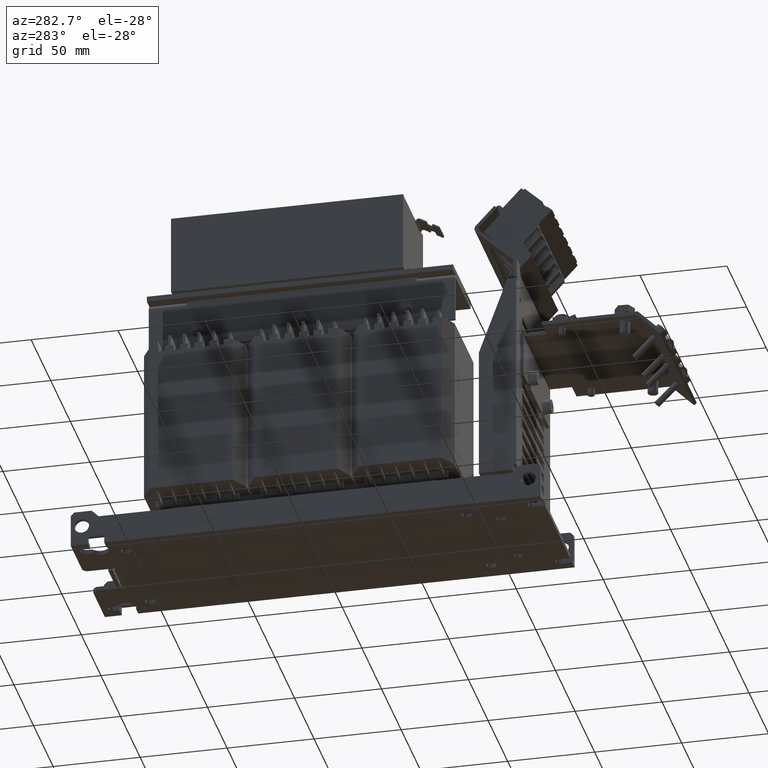
[diagram: clean part render]
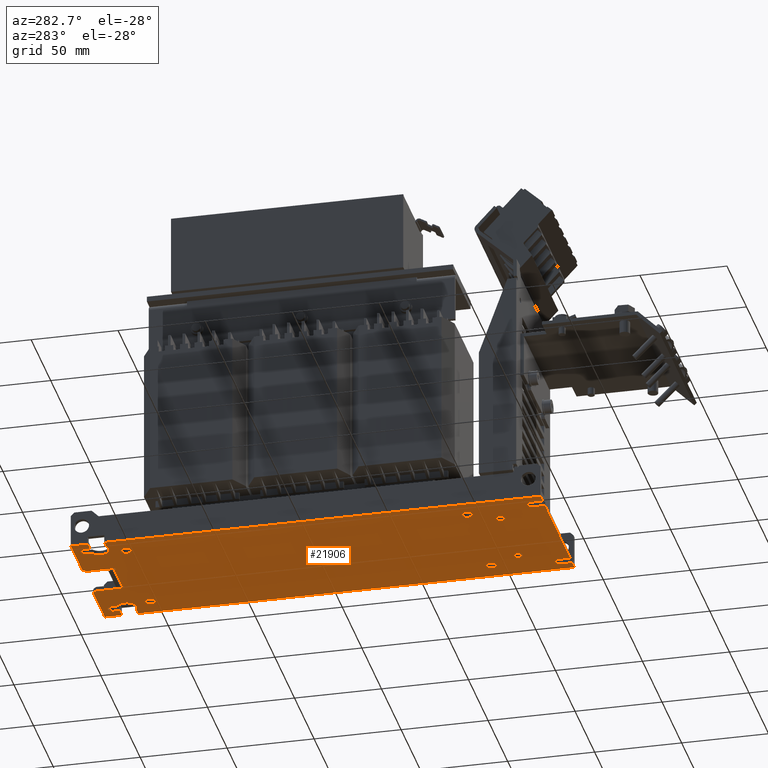
[diagram: same view with one face highlighted and labeled with its STEP entity id]
A machine part, auxiliary view. The second image highlights one B-rep face of the part: STEP entity #21906.
In plain terms, the highlighted planar face has unit normal (0, 0, -1).
Its self-contained STEP definition (entity closure, byte-faithful):
#6055=DIRECTION('',(1.E0,0.E0,0.E0));
#6056=VECTOR('',#6055,5.704976797613E0);
#6057=CARTESIAN_POINT('',(3.779502320124E1,1.157631397208E2,-2.5E0));
#6058=LINE('',#6057,#6056);
#6064=CARTESIAN_POINT('',(3.5E1,1.205E2,-2.5E0));
#6065=DIRECTION('',(0.E0,0.E0,1.E0));
#6066=DIRECTION('',(-5.E-1,8.660254037844E-1,0.E0));
#6067=AXIS2_PLACEMENT_3D('',#6064,#6065,#6066);
#6077=DIRECTION('',(0.E0,1.E0,0.E0));
#6078=VECTOR('',#6077,3.236860279186E0);
#6079=CARTESIAN_POINT('',(3.225E1,1.252631397208E2,-2.5E0));
#6080=LINE('',#6079,#6078);
#6081=DIRECTION('',(0.E0,-1.E0,0.E0));
#6082=VECTOR('',#6081,3.236860279186E0);
#6083=CARTESIAN_POINT('',(3.775E1,1.285E2,-2.5E0));
#6084=LINE('',#6083,#6082);
#6085=DIRECTION('',(0.E0,-1.E0,0.E0));
#6086=VECTOR('',#6085,9.736860279186E0);
#6087=CARTESIAN_POINT('',(4.349999999885E1,1.35E2,-2.5E0));
#6088=LINE('',#6087,#6086);
#6089=DIRECTION('',(-7.071067811866E-1,-7.071067811865E-1,0.E0));
#6090=VECTOR('',#6089,2.828427124746E0);
#6091=CARTESIAN_POINT('',(1.4E1,1.35E2,-2.5E0));
#6092=LINE('',#6091,#6090);
#6093=DIRECTION('',(0.E0,-1.E0,0.E0));
#6094=VECTOR('',#6093,1.65E1);
#6095=CARTESIAN_POINT('',(1.2E1,1.33E2,-2.5E0));
#6096=LINE('',#6095,#6094);
#6097=DIRECTION('',(-1.E0,0.E0,0.E0));
#6098=VECTOR('',#6097,2.E0);
#6099=CARTESIAN_POINT('',(1.2E1,1.165E2,-2.5E0));
#6100=LINE('',#6099,#6098);
#6101=DIRECTION('',(0.E0,1.E0,0.E0));
#6102=VECTOR('',#6101,1.E0);
#6103=CARTESIAN_POINT('',(1.E1,1.165E2,-2.5E0));
#6104=LINE('',#6103,#6102);
#6105=DIRECTION('',(-1.E0,0.E0,0.E0));
#6106=VECTOR('',#6105,2.E1);
#6107=CARTESIAN_POINT('',(1.E1,1.175E2,-2.5E0));
#6108=LINE('',#6107,#6106);
#6109=DIRECTION('',(0.E0,-1.E0,0.E0));
#6110=VECTOR('',#6109,1.E0);
#6111=CARTESIAN_POINT('',(-1.E1,1.175E2,-2.5E0));
#6112=LINE('',#6111,#6110);
#6113=DIRECTION('',(-1.E0,0.E0,0.E0));
#6114=VECTOR('',#6113,2.E0);
#6115=CARTESIAN_POINT('',(-1.E1,1.165E2,-2.5E0));
#6116=LINE('',#6115,#6114);
#6117=DIRECTION('',(0.E0,1.E0,0.E0));
#6118=VECTOR('',#6117,1.65E1);
#6119=CARTESIAN_POINT('',(-1.2E1,1.165E2,-2.5E0));
#6120=LINE('',#6119,#6118);
#6121=DIRECTION('',(-7.071067811865E-1,7.071067811865E-1,0.E0));
#6122=VECTOR('',#6121,2.828427124746E0);
#6123=CARTESIAN_POINT('',(-1.2E1,1.33E2,-2.5E0));
#6124=LINE('',#6123,#6122);
#6125=DIRECTION('',(0.E0,1.E0,0.E0));
#6126=VECTOR('',#6125,3.236860279186E0);
#6127=CARTESIAN_POINT('',(-3.775E1,1.252631397208E2,-2.5E0));
#6128=LINE('',#6127,#6126);
#6129=DIRECTION('',(0.E0,-1.E0,0.E0));
#6130=VECTOR('',#6129,3.236860279186E0);
#6131=CARTESIAN_POINT('',(-3.225E1,1.285E2,-2.5E0));
#6132=LINE('',#6131,#6130);
#6133=DIRECTION('',(7.071067811866E-1,7.071067811865E-1,0.E0));
#6134=VECTOR('',#6133,7.071067811866E-1);
#6135=CARTESIAN_POINT('',(-3.825E1,-1.35E2,-2.500000000001E0));
#6136=LINE('',#6135,#6134);
#6137=DIRECTION('',(0.E0,1.E0,0.E0));
#6138=VECTOR('',#6137,6.E0);
#6139=CARTESIAN_POINT('',(-3.775E1,-1.345E2,-2.500000000001E0));
#6140=LINE('',#6139,#6138);
#6141=DIRECTION('',(0.E0,-1.E0,0.E0));
#6142=VECTOR('',#6141,6.E0);
#6143=CARTESIAN_POINT('',(-3.225E1,-1.285E2,-2.500000000001E0));
#6144=LINE('',#6143,#6142);
#6145=DIRECTION('',(7.071067811865E-1,-7.071067811866E-1,0.E0));
#6146=VECTOR('',#6145,7.071067811865E-1);
#6147=CARTESIAN_POINT('',(-3.225E1,-1.345E2,-2.500000000001E0));
#6148=LINE('',#6147,#6146);
#6149=DIRECTION('',(7.071067811865E-1,7.071067811866E-1,0.E0));
#6150=VECTOR('',#6149,7.071067811865E-1);
#6151=CARTESIAN_POINT('',(3.175E1,-1.35E2,-2.500000000001E0));
#6152=LINE('',#6151,#6150);
#6153=DIRECTION('',(0.E0,1.E0,0.E0));
#6154=VECTOR('',#6153,6.E0);
#6155=CARTESIAN_POINT('',(3.225E1,-1.345E2,-2.500000000001E0));
#6156=LINE('',#6155,#6154);
#6157=DIRECTION('',(0.E0,-1.E0,0.E0));
#6158=VECTOR('',#6157,6.E0);
#6159=CARTESIAN_POINT('',(3.775E1,-1.285E2,-2.500000000001E0));
#6160=LINE('',#6159,#6158);
#6161=DIRECTION('',(7.071067811865E-1,-7.071067811866E-1,0.E0));
#6162=VECTOR('',#6161,7.071067811865E-1);
#6163=CARTESIAN_POINT('',(3.775E1,-1.345E2,-2.500000000001E0));
#6164=LINE('',#6163,#6162);
#6165=DIRECTION('',(0.E0,-1.E0,0.E0));
#6166=VECTOR('',#6165,2.507631397208E2);
#6167=CARTESIAN_POINT('',(4.349999999885E1,1.157631397208E2,-2.5E0));
#6168=LINE('',#6167,#6166);
#6169=CARTESIAN_POINT('',(2.25E1,-1.075E2,-2.500000000001E0));
#6170=DIRECTION('',(0.E0,0.E0,-1.E0));
#6171=DIRECTION('',(1.136868377216E-14,1.E0,0.E0));
#6172=AXIS2_PLACEMENT_3D('',#6169,#6170,#6171);
#6174=CARTESIAN_POINT('',(2.25E1,-1.075E2,-2.500000000001E0));
#6175=DIRECTION('',(0.E0,0.E0,-1.E0));
#6176=DIRECTION('',(1.136868377216E-14,-1.E0,0.E0));
#6177=AXIS2_PLACEMENT_3D('',#6174,#6175,#6176);
#6179=CARTESIAN_POINT('',(3.1E1,-9.E1,-2.5E0));
#6180=DIRECTION('',(0.E0,0.E0,-1.E0));
#6181=DIRECTION('',(-1.065814103640E-14,-1.E0,0.E0));
#6182=AXIS2_PLACEMENT_3D('',#6179,#6180,#6181);
#6184=CARTESIAN_POINT('',(3.1E1,-9.E1,-2.5E0));
#6185=DIRECTION('',(0.E0,0.E0,-1.E0));
#6186=DIRECTION('',(-1.065814103640E-14,1.E0,0.E0));
#6187=AXIS2_PLACEMENT_3D('',#6184,#6185,#6186);
#6189=CARTESIAN_POINT('',(-2.25E1,-1.075E2,-2.500000000001E0));
#6190=DIRECTION('',(0.E0,0.E0,-1.E0));
#6191=DIRECTION('',(0.E0,1.E0,0.E0));
#6192=AXIS2_PLACEMENT_3D('',#6189,#6190,#6191);
#6194=CARTESIAN_POINT('',(-2.25E1,-1.075E2,-2.500000000001E0));
#6195=DIRECTION('',(0.E0,0.E0,-1.E0));
#6196=DIRECTION('',(0.E0,-1.E0,0.E0));
#6197=AXIS2_PLACEMENT_3D('',#6194,#6195,#6196);
#6199=CARTESIAN_POINT('',(-3.1E1,-9.E1,-2.5E0));
#6200=DIRECTION('',(0.E0,0.E0,-1.E0));
#6201=DIRECTION('',(-1.184237892934E-14,1.E0,0.E0));
#6202=AXIS2_PLACEMENT_3D('',#6199,#6200,#6201);
#6204=CARTESIAN_POINT('',(-3.1E1,-9.E1,-2.5E0));
#6205=DIRECTION('',(0.E0,0.E0,-1.E0));
#6206=DIRECTION('',(-1.184237892934E-14,-1.E0,0.E0));
#6207=AXIS2_PLACEMENT_3D('',#6204,#6205,#6206);
#6209=CARTESIAN_POINT('',(3.1E1,1.06E2,-2.5E0));
#6210=DIRECTION('',(0.E0,0.E0,-1.E0));
#6211=DIRECTION('',(0.E0,1.E0,0.E0));
#6212=AXIS2_PLACEMENT_3D('',#6209,#6210,#6211);
#6214=CARTESIAN_POINT('',(3.1E1,1.06E2,-2.5E0));
#6215=DIRECTION('',(0.E0,0.E0,-1.E0));
#6216=DIRECTION('',(0.E0,-1.E0,0.E0));
#6217=AXIS2_PLACEMENT_3D('',#6214,#6215,#6216);
#6219=CARTESIAN_POINT('',(-3.1E1,1.06E2,-2.5E0));
#6220=DIRECTION('',(0.E0,0.E0,-1.E0));
#6221=DIRECTION('',(0.E0,-1.E0,0.E0));
#6222=AXIS2_PLACEMENT_3D('',#6219,#6220,#6221);
#6224=CARTESIAN_POINT('',(-3.1E1,1.06E2,-2.5E0));
#6225=DIRECTION('',(0.E0,0.E0,-1.E0));
#6226=DIRECTION('',(0.E0,1.E0,0.E0));
#6227=AXIS2_PLACEMENT_3D('',#6224,#6225,#6226);
#6234=CARTESIAN_POINT('',(3.5E1,1.285E2,-2.5E0));
#6235=DIRECTION('',(0.E0,0.E0,1.E0));
#6236=DIRECTION('',(1.E0,0.E0,0.E0));
#6237=AXIS2_PLACEMENT_3D('',#6234,#6235,#6236);
#6251=DIRECTION('',(-1.E0,0.E0,0.E0));
#6252=VECTOR('',#6251,5.749999998854E0);
#6253=CARTESIAN_POINT('',(4.349999999885E1,1.252631397208E2,-2.5E0));
#6254=LINE('',#6253,#6252);
#6423=DIRECTION('',(-1.E0,0.E0,0.E0));
#6424=VECTOR('',#6423,6.35E1);
#6425=CARTESIAN_POINT('',(3.175E1,-1.35E2,-2.500000000001E0));
#6426=LINE('',#6425,#6424);
#6443=DIRECTION('',(-1.E0,0.E0,0.E0));
#6444=VECTOR('',#6443,5.249999998854E0);
#6445=CARTESIAN_POINT('',(4.349999999885E1,-1.35E2,-2.500000000001E0));
#6446=LINE('',#6445,#6444);
#6475=DIRECTION('',(-1.E0,0.E0,0.E0));
#6476=VECTOR('',#6475,5.25E0);
#6477=CARTESIAN_POINT('',(-3.825E1,-1.35E2,-2.500000000001E0));
#6478=LINE('',#6477,#6476);
#6492=CARTESIAN_POINT('',(3.5E1,-1.285E2,-2.500000000001E0));
#6493=DIRECTION('',(0.E0,0.E0,1.E0));
#6494=DIRECTION('',(1.E0,0.E0,0.E0));
#6495=AXIS2_PLACEMENT_3D('',#6492,#6493,#6494);
#6522=CARTESIAN_POINT('',(-3.5E1,-1.285E2,-2.500000000001E0));
#6523=DIRECTION('',(0.E0,0.E0,1.E0));
#6524=DIRECTION('',(1.E0,1.240220047872E-13,0.E0));
#6525=AXIS2_PLACEMENT_3D('',#6522,#6523,#6524);
#6627=DIRECTION('',(0.E0,-1.E0,0.E0));
#6628=VECTOR('',#6627,2.507631397208E2);
#6629=CARTESIAN_POINT('',(-4.35E1,1.157631397208E2,-2.5E0));
#6630=LINE('',#6629,#6628);
#6643=DIRECTION('',(0.E0,-1.E0,0.E0));
#6644=VECTOR('',#6643,9.736860279186E0);
#6645=CARTESIAN_POINT('',(-4.35E1,1.35E2,-2.5E0));
#6646=LINE('',#6645,#6644);
#6683=DIRECTION('',(1.E0,0.E0,0.E0));
#6684=VECTOR('',#6683,5.704976798759E0);
#6685=CARTESIAN_POINT('',(-4.35E1,1.157631397208E2,-2.5E0));
#6686=LINE('',#6685,#6684);
#6711=DIRECTION('',(-1.E0,0.E0,0.E0));
#6712=VECTOR('',#6711,5.75E0);
#6713=CARTESIAN_POINT('',(-3.775E1,1.252631397208E2,-2.5E0));
#6714=LINE('',#6713,#6712);
#6724=CARTESIAN_POINT('',(-3.5E1,1.285E2,-2.5E0));
#6725=DIRECTION('',(0.E0,0.E0,1.E0));
#6726=DIRECTION('',(1.E0,0.E0,0.E0));
#6727=AXIS2_PLACEMENT_3D('',#6724,#6725,#6726);
#6742=CARTESIAN_POINT('',(-3.5E1,1.205E2,-2.5E0));
#6743=DIRECTION('',(0.E0,0.E0,1.E0));
#6744=DIRECTION('',(-5.081860365892E-1,-8.612473234883E-1,0.E0));
#6745=AXIS2_PLACEMENT_3D('',#6742,#6743,#6744);
#6767=DIRECTION('',(-1.E0,0.E0,0.E0));
#6768=VECTOR('',#6767,2.949999999885E1);
#6769=CARTESIAN_POINT('',(4.349999999885E1,1.35E2,-2.5E0));
#6770=LINE('',#6769,#6768);
#6783=DIRECTION('',(-1.E0,0.E0,0.E0));
#6784=VECTOR('',#6783,2.95E1);
#6785=CARTESIAN_POINT('',(-1.4E1,1.35E2,-2.5E0));
#6786=LINE('',#6785,#6784);
#11661=CARTESIAN_POINT('',(-1.4E1,1.35E2,-2.5E0));
#11663=VERTEX_POINT('',#11661);
#11665=CARTESIAN_POINT('',(1.4E1,1.35E2,-2.5E0));
#11667=VERTEX_POINT('',#11665);
#11669=CARTESIAN_POINT('',(3.825E1,-1.35E2,-2.500000000001E0));
#11671=VERTEX_POINT('',#11669);
#11673=CARTESIAN_POINT('',(3.175E1,-1.35E2,-2.500000000001E0));
#11675=VERTEX_POINT('',#11673);
#11677=CARTESIAN_POINT('',(-3.825E1,-1.35E2,-2.500000000001E0));
#11679=VERTEX_POINT('',#11677);
#11681=CARTESIAN_POINT('',(-3.175E1,-1.35E2,-2.500000000001E0));
#11683=VERTEX_POINT('',#11681);
#11689=CARTESIAN_POINT('',(4.349999999885E1,1.157631397208E2,-2.5E0));
#11690=VERTEX_POINT('',#11689);
#11691=CARTESIAN_POINT('',(4.349999999885E1,1.252631397208E2,-2.5E0));
#11692=VERTEX_POINT('',#11691);
#11693=CARTESIAN_POINT('',(3.225E1,1.252631397208E2,-2.5E0));
#11694=CARTESIAN_POINT('',(3.225E1,1.285E2,-2.5E0));
#11695=VERTEX_POINT('',#11693);
#11696=VERTEX_POINT('',#11694);
#11697=CARTESIAN_POINT('',(3.775E1,1.285E2,-2.5E0));
#11698=CARTESIAN_POINT('',(3.775E1,1.252631397208E2,-2.5E0));
#11699=VERTEX_POINT('',#11697);
#11700=VERTEX_POINT('',#11698);
#11701=CARTESIAN_POINT('',(-3.775E1,1.252631397208E2,-2.5E0));
#11702=CARTESIAN_POINT('',(-3.775E1,1.285E2,-2.5E0));
#11703=VERTEX_POINT('',#11701);
#11704=VERTEX_POINT('',#11702);
#11705=CARTESIAN_POINT('',(-3.225E1,1.285E2,-2.5E0));
#11706=CARTESIAN_POINT('',(-3.225E1,1.252631397208E2,-2.5E0));
#11707=VERTEX_POINT('',#11705);
#11708=VERTEX_POINT('',#11706);
#11709=CARTESIAN_POINT('',(3.775E1,-1.285E2,-2.500000000001E0));
#11710=CARTESIAN_POINT('',(3.775E1,-1.345E2,-2.500000000001E0));
#11711=VERTEX_POINT('',#11709);
#11712=VERTEX_POINT('',#11710);
#11713=CARTESIAN_POINT('',(3.225E1,-1.345E2,-2.500000000001E0));
#11714=VERTEX_POINT('',#11713);
#11715=CARTESIAN_POINT('',(3.225E1,-1.285E2,-2.500000000001E0));
#11716=VERTEX_POINT('',#11715);
#11717=CARTESIAN_POINT('',(-3.775E1,-1.345E2,-2.500000000001E0));
#11718=VERTEX_POINT('',#11717);
#11719=CARTESIAN_POINT('',(-3.775E1,-1.285E2,-2.500000000001E0));
#11720=VERTEX_POINT('',#11719);
#11721=CARTESIAN_POINT('',(-3.225E1,-1.285E2,-2.500000000001E0));
#11722=CARTESIAN_POINT('',(-3.225E1,-1.345E2,-2.500000000001E0));
#11723=VERTEX_POINT('',#11721);
#11724=VERTEX_POINT('',#11722);
#11725=CARTESIAN_POINT('',(2.25E1,-1.05E2,-2.500000000001E0));
#11726=CARTESIAN_POINT('',(2.25E1,-1.1E2,-2.500000000001E0));
#11727=VERTEX_POINT('',#11725);
#11728=VERTEX_POINT('',#11726);
#11729=CARTESIAN_POINT('',(3.1E1,-9.3E1,-2.5E0));
#11730=CARTESIAN_POINT('',(3.1E1,-8.7E1,-2.500000000001E0));
#11731=VERTEX_POINT('',#11729);
#11732=VERTEX_POINT('',#11730);
#11733=CARTESIAN_POINT('',(-2.25E1,-1.05E2,-2.500000000001E0));
#11734=CARTESIAN_POINT('',(-2.25E1,-1.1E2,-2.500000000001E0));
#11735=VERTEX_POINT('',#11733);
#11736=VERTEX_POINT('',#11734);
#11737=CARTESIAN_POINT('',(-3.1E1,-8.7E1,-2.500000000001E0));
#11738=CARTESIAN_POINT('',(-3.1E1,-9.3E1,-2.5E0));
#11739=VERTEX_POINT('',#11737);
#11740=VERTEX_POINT('',#11738);
#11741=CARTESIAN_POINT('',(3.1E1,1.09E2,-2.5E0));
#11742=CARTESIAN_POINT('',(3.1E1,1.03E2,-2.5E0));
#11743=VERTEX_POINT('',#11741);
#11744=VERTEX_POINT('',#11742);
#11745=CARTESIAN_POINT('',(-3.1E1,1.03E2,-2.5E0));
#11746=CARTESIAN_POINT('',(-3.1E1,1.09E2,-2.5E0));
#11747=VERTEX_POINT('',#11745);
#11748=VERTEX_POINT('',#11746);
#11749=CARTESIAN_POINT('',(1.2E1,1.33E2,-2.5E0));
#11750=CARTESIAN_POINT('',(1.2E1,1.165E2,-2.5E0));
#11751=VERTEX_POINT('',#11749);
#11752=VERTEX_POINT('',#11750);
#11753=CARTESIAN_POINT('',(1.E1,1.165E2,-2.5E0));
#11754=VERTEX_POINT('',#11753);
#11755=CARTESIAN_POINT('',(1.E1,1.175E2,-2.5E0));
#11756=VERTEX_POINT('',#11755);
#11757=CARTESIAN_POINT('',(-1.E1,1.175E2,-2.5E0));
#11758=VERTEX_POINT('',#11757);
#11759=CARTESIAN_POINT('',(-1.E1,1.165E2,-2.5E0));
#11760=VERTEX_POINT('',#11759);
#11761=CARTESIAN_POINT('',(-1.2E1,1.165E2,-2.5E0));
#11762=VERTEX_POINT('',#11761);
#11763=CARTESIAN_POINT('',(-1.2E1,1.33E2,-2.5E0));
#11764=VERTEX_POINT('',#11763);
#11769=CARTESIAN_POINT('',(-4.35E1,1.252631397208E2,-2.5E0));
#11770=VERTEX_POINT('',#11769);
#11771=CARTESIAN_POINT('',(-4.35E1,1.157631397208E2,-2.5E0));
#11772=VERTEX_POINT('',#11771);
#11837=CARTESIAN_POINT('',(4.349999999885E1,1.35E2,-2.5E0));
#11838=VERTEX_POINT('',#11837);
#11839=CARTESIAN_POINT('',(-4.35E1,1.35E2,-2.5E0));
#11840=VERTEX_POINT('',#11839);
#11845=CARTESIAN_POINT('',(4.349999999885E1,-1.35E2,-2.500000000001E0));
#11846=VERTEX_POINT('',#11845);
#11847=CARTESIAN_POINT('',(-4.35E1,-1.35E2,-2.500000000001E0));
#11848=VERTEX_POINT('',#11847);
#11853=CARTESIAN_POINT('',(3.779502320124E1,1.157631397208E2,-2.5E0));
#11855=VERTEX_POINT('',#11853);
#11857=CARTESIAN_POINT('',(-3.779502320124E1,1.157631397208E2,-2.5E0));
#11859=VERTEX_POINT('',#11857);
#21786=CARTESIAN_POINT('',(4.349999999885E1,1.35E2,-2.5E0));
#21787=DIRECTION('',(0.E0,0.E0,-1.E0));
#21788=DIRECTION('',(-1.E0,0.E0,0.E0));
#21789=AXIS2_PLACEMENT_3D('',#21786,#21787,#21788);
#21790=PLANE('',#21789);
#21791=ORIENTED_EDGE('',*,*,#21747,.F.);
#21792=ORIENTED_EDGE('',*,*,#21766,.F.);
#21793=ORIENTED_EDGE('',*,*,#21777,.T.);
#21795=ORIENTED_EDGE('',*,*,#21794,.F.);
#21797=ORIENTED_EDGE('',*,*,#21796,.T.);
#21799=ORIENTED_EDGE('',*,*,#21798,.F.);
#21801=ORIENTED_EDGE('',*,*,#21800,.F.);
#21803=ORIENTED_EDGE('',*,*,#21802,.T.);
#21805=ORIENTED_EDGE('',*,*,#21804,.T.);
#21807=ORIENTED_EDGE('',*,*,#21806,.T.);
#21809=ORIENTED_EDGE('',*,*,#21808,.T.);
#21811=ORIENTED_EDGE('',*,*,#21810,.T.);
#21813=ORIENTED_EDGE('',*,*,#21812,.T.);
#21815=ORIENTED_EDGE('',*,*,#21814,.T.);
#21817=ORIENTED_EDGE('',*,*,#21816,.T.);
#21819=ORIENTED_EDGE('',*,*,#21818,.T.);
#21821=ORIENTED_EDGE('',*,*,#21820,.T.);
#21823=ORIENTED_EDGE('',*,*,#21822,.T.);
#21825=ORIENTED_EDGE('',*,*,#21824,.T.);
#21827=ORIENTED_EDGE('',*,*,#21826,.F.);
#21829=ORIENTED_EDGE('',*,*,#21828,.T.);
#21831=ORIENTED_EDGE('',*,*,#21830,.F.);
#21833=ORIENTED_EDGE('',*,*,#21832,.T.);
#21835=ORIENTED_EDGE('',*,*,#21834,.F.);
#21837=ORIENTED_EDGE('',*,*,#21836,.F.);
#21839=ORIENTED_EDGE('',*,*,#21838,.T.);
#21841=ORIENTED_EDGE('',*,*,#21840,.F.);
#21843=ORIENTED_EDGE('',*,*,#21842,.T.);
#21845=ORIENTED_EDGE('',*,*,#21844,.T.);
#21847=ORIENTED_EDGE('',*,*,#21846,.F.);
#21849=ORIENTED_EDGE('',*,*,#21848,.T.);
#21851=ORIENTED_EDGE('',*,*,#21850,.T.);
#21853=ORIENTED_EDGE('',*,*,#21852,.F.);
#21855=ORIENTED_EDGE('',*,*,#21854,.T.);
#21857=ORIENTED_EDGE('',*,*,#21856,.T.);
#21859=ORIENTED_EDGE('',*,*,#21858,.F.);
#21861=ORIENTED_EDGE('',*,*,#21860,.T.);
#21863=ORIENTED_EDGE('',*,*,#21862,.T.);
#21865=ORIENTED_EDGE('',*,*,#21864,.F.);
#21867=ORIENTED_EDGE('',*,*,#21866,.F.);
#21868=EDGE_LOOP('',(#21791,#21792,#21793,#21795,#21797,#21799,#21801,#21803,
#21805,#21807,#21809,#21811,#21813,#21815,#21817,#21819,#21821,#21823,#21825,
#21827,#21829,#21831,#21833,#21835,#21837,#21839,#21841,#21843,#21845,#21847,
#21849,#21851,#21853,#21855,#21857,#21859,#21861,#21863,#21865,#21867));
#21869=FACE_OUTER_BOUND('',#21868,.F.);
#21871=ORIENTED_EDGE('',*,*,#21870,.T.);
#21873=ORIENTED_EDGE('',*,*,#21872,.T.);
#21874=EDGE_LOOP('',(#21871,#21873));
#21875=FACE_BOUND('',#21874,.F.);
#21877=ORIENTED_EDGE('',*,*,#21876,.T.);
#21879=ORIENTED_EDGE('',*,*,#21878,.T.);
#21880=EDGE_LOOP('',(#21877,#21879));
#21881=FACE_BOUND('',#21880,.F.);
#21883=ORIENTED_EDGE('',*,*,#21882,.T.);
#21885=ORIENTED_EDGE('',*,*,#21884,.T.);
#21886=EDGE_LOOP('',(#21883,#21885));
#21887=FACE_BOUND('',#21886,.F.);
#21889=ORIENTED_EDGE('',*,*,#21888,.T.);
#21891=ORIENTED_EDGE('',*,*,#21890,.T.);
#21892=EDGE_LOOP('',(#21889,#21891));
#21893=FACE_BOUND('',#21892,.F.);
#21895=ORIENTED_EDGE('',*,*,#21894,.T.);
#21897=ORIENTED_EDGE('',*,*,#21896,.T.);
#21898=EDGE_LOOP('',(#21895,#21897));
#21899=FACE_BOUND('',#21898,.F.);
#21901=ORIENTED_EDGE('',*,*,#21900,.T.);
#21903=ORIENTED_EDGE('',*,*,#21902,.T.);
#21904=EDGE_LOOP('',(#21901,#21903));
#21905=FACE_BOUND('',#21904,.F.);
#21906=ADVANCED_FACE('',(#21869,#21875,#21881,#21887,#21893,#21899,#21905),
#21790,.T.);
#6068=CIRCLE('',#6067,5.5E0);
#6173=CIRCLE('',#6172,2.5E0);
#6178=CIRCLE('',#6177,2.5E0);
#6183=CIRCLE('',#6182,3.E0);
#6188=CIRCLE('',#6187,3.E0);
#6193=CIRCLE('',#6192,2.5E0);
#6198=CIRCLE('',#6197,2.5E0);
#6203=CIRCLE('',#6202,3.E0);
#6208=CIRCLE('',#6207,3.E0);
#6213=CIRCLE('',#6212,3.E0);
#6218=CIRCLE('',#6217,3.E0);
#6223=CIRCLE('',#6222,3.E0);
#6228=CIRCLE('',#6227,3.E0);
#6238=CIRCLE('',#6237,2.75E0);
#6496=CIRCLE('',#6495,2.75E0);
#6526=CIRCLE('',#6525,2.75E0);
#6728=CIRCLE('',#6727,2.75E0);
#6746=CIRCLE('',#6745,5.5E0);
#21747=EDGE_CURVE('',#11855,#11690,#6058,.T.);
#21766=EDGE_CURVE('',#11695,#11855,#6068,.T.);
#21777=EDGE_CURVE('',#11695,#11696,#6080,.T.);
#21794=EDGE_CURVE('',#11699,#11696,#6238,.T.);
#21796=EDGE_CURVE('',#11699,#11700,#6084,.T.);
#21798=EDGE_CURVE('',#11692,#11700,#6254,.T.);
#21800=EDGE_CURVE('',#11838,#11692,#6088,.T.);
#21802=EDGE_CURVE('',#11838,#11667,#6770,.T.);
#21804=EDGE_CURVE('',#11667,#11751,#6092,.T.);
#21806=EDGE_CURVE('',#11751,#11752,#6096,.T.);
#21808=EDGE_CURVE('',#11752,#11754,#6100,.T.);
#21810=EDGE_CURVE('',#11754,#11756,#6104,.T.);
#21812=EDGE_CURVE('',#11756,#11758,#6108,.T.);
#21814=EDGE_CURVE('',#11758,#11760,#6112,.T.);
#21816=EDGE_CURVE('',#11760,#11762,#6116,.T.);
#21818=EDGE_CURVE('',#11762,#11764,#6120,.T.);
#21820=EDGE_CURVE('',#11764,#11663,#6124,.T.);
#21822=EDGE_CURVE('',#11663,#11840,#6786,.T.);
#21824=EDGE_CURVE('',#11840,#11770,#6646,.T.);
#21826=EDGE_CURVE('',#11703,#11770,#6714,.T.);
#21828=EDGE_CURVE('',#11703,#11704,#6128,.T.);
#21830=EDGE_CURVE('',#11707,#11704,#6728,.T.);
#21832=EDGE_CURVE('',#11707,#11708,#6132,.T.);
#21834=EDGE_CURVE('',#11859,#11708,#6746,.T.);
#21836=EDGE_CURVE('',#11772,#11859,#6686,.T.);
#21838=EDGE_CURVE('',#11772,#11848,#6630,.T.);
#21840=EDGE_CURVE('',#11679,#11848,#6478,.T.);
#21842=EDGE_CURVE('',#11679,#11718,#6136,.T.);
#21844=EDGE_CURVE('',#11718,#11720,#6140,.T.);
#21846=EDGE_CURVE('',#11723,#11720,#6526,.T.);
#21848=EDGE_CURVE('',#11723,#11724,#6144,.T.);
#21850=EDGE_CURVE('',#11724,#11683,#6148,.T.);
#21852=EDGE_CURVE('',#11675,#11683,#6426,.T.);
#21854=EDGE_CURVE('',#11675,#11714,#6152,.T.);
#21856=EDGE_CURVE('',#11714,#11716,#6156,.T.);
#21858=EDGE_CURVE('',#11711,#11716,#6496,.T.);
#21860=EDGE_CURVE('',#11711,#11712,#6160,.T.);
#21862=EDGE_CURVE('',#11712,#11671,#6164,.T.);
#21864=EDGE_CURVE('',#11846,#11671,#6446,.T.);
#21866=EDGE_CURVE('',#11690,#11846,#6168,.T.);
#21870=EDGE_CURVE('',#11727,#11728,#6173,.T.);
#21872=EDGE_CURVE('',#11728,#11727,#6178,.T.);
#21876=EDGE_CURVE('',#11731,#11732,#6183,.T.);
#21878=EDGE_CURVE('',#11732,#11731,#6188,.T.);
#21882=EDGE_CURVE('',#11735,#11736,#6193,.T.);
#21884=EDGE_CURVE('',#11736,#11735,#6198,.T.);
#21888=EDGE_CURVE('',#11739,#11740,#6203,.T.);
#21890=EDGE_CURVE('',#11740,#11739,#6208,.T.);
#21894=EDGE_CURVE('',#11743,#11744,#6213,.T.);
#21896=EDGE_CURVE('',#11744,#11743,#6218,.T.);
#21900=EDGE_CURVE('',#11747,#11748,#6223,.T.);
#21902=EDGE_CURVE('',#11748,#11747,#6228,.T.);